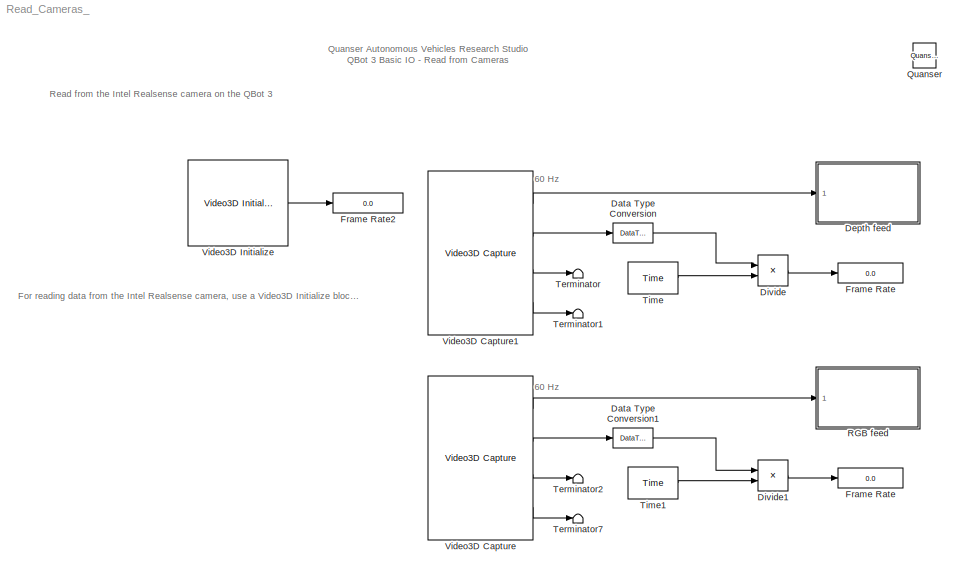
MODEL Read_Cameras_
KIND model
BLOCK [Display]  Frame Rate 
  Decimation = 20
  Ports = [1]
  SID = 93
BLOCK [DataTypeConversion] Data Type Conversion
  RndMeth = Floor
  SID = 255
  SaturateOnIntegerOverflow = off
BLOCK [DataTypeConversion] Data Type Conversion1
  RndMeth = Floor
  SID = 256
  SaturateOnIntegerOverflow = off
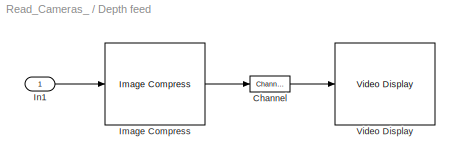
BLOCK [SubSystem] Depth feed
  CopyFcn = set_param(gcbh, 'UserData', gcb);\nset_param(gcbh, 'LinkStatus', 'none');
  LoadFcn = set_param(gcbh, 'UserData', gcb);
  NameChangeFcn = video_display_show([get_param(gcbh, 'UserData'), '/Video Display'], 'rename', [gcb, '/Video Display']);\nvideo_display_show([gcb, '/Video Display'], 'add', gcb);\nset_param(gcbh, 'UserData', gcb);\n
  OpenFcn = video_display_show([gcb, '/Video Display'], 'show', gcb);
  Ports = [1]
  PreDeleteFcn = video_display_show([gcb, '/Video Display'], 'delete');
  RequestExecContextInheritance = off
  SID = 244
  StartFcn = video_display_show([gcb, '/Video Display'], 'add', gcb);
  UndoDeleteFcn = set_param(gcbh, 'UserData', gcb);
BLOCK [Reference] Depth feed/Channel  REF=quarc_library/Signal Routing/Channel
  MultiThreadCoSim = auto
  Ports = [1, 1]
  SID = 244:14426
  SourceBlock = quarc_library/Signal Routing/Channel
  SourceProductName = QUARC Targets
  SourceType = Channel
  buffer_size = 1
  channel = 0
BLOCK [Reference] Depth feed/Image Compress  REF=quarc_library/Image Processing/Generic/Image Compress
  AttributesFormatString = (%<algorithm>)
  MultiThreadCoSim = auto
  Ports = [1, 1]
  SID = 244:14427
  SourceBlock = quarc_library/Image Processing/Generic/Image Compress
  SourceProductName = QUARC Targets
  SourceType = Image Compress
  algorithm = JPEG
  output_dim = -1
  quality = quality
  source = Internal dialog parameter
BLOCK [Inport] Depth feed/In1
  SID = 244:14425
BLOCK [Reference] Depth feed/Video Display  REF=quarc_library/Multimedia/Video Display
  MultiThreadCoSim = auto
  Ports = [1]
  SID = 244:14428
  SourceBlock = quarc_library/Multimedia/Video Display
  SourceProductName = QUARC Targets
  SourceType = Video Display
  Tag = Read_Cameras_/Depth feed/Video Display
  UserData = DataTag0
  UserDataPersistent = on
  sample_time = sample_time
  use_hardware = on
BLOCK [Product] Divide
  Inputs = */
  Ports = [2, 1]
  SID = 77
BLOCK [Product] Divide1
  Inputs = */
  Ports = [2, 1]
  SID = 92
BLOCK [Display] Frame Rate
  Decimation = 20
  Ports = [1]
  SID = 78
BLOCK [Display] Frame Rate2
  Decimation = 20
  Ports = [1]
  SID = 72
BLOCK [Reference] Quanser  REF=quarc_library/Logos/Quanser
  Ports = []
  RTWMemSecDataConstants = Inherit from model
  RTWMemSecDataInternal = Inherit from model
  RTWMemSecDataParameters = Inherit from model
  RTWMemSecFuncExecute = Inherit from model
  RTWMemSecFuncInitTerm = Inherit from model
  SID = 259
  SourceBlock = quarc_library/Logos/Quanser
  SourceProductName = QUARC Targets
  SourceType = Powered by Quanser
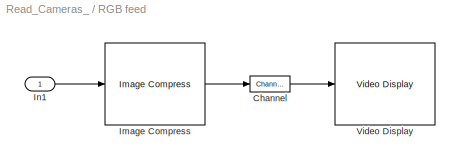
BLOCK [SubSystem] RGB feed
  CopyFcn = set_param(gcbh, 'UserData', gcb);\nset_param(gcbh, 'LinkStatus', 'none');
  LoadFcn = set_param(gcbh, 'UserData', gcb);
  NameChangeFcn = video_display_show([get_param(gcbh, 'UserData'), '/Video Display'], 'rename', [gcb, '/Video Display']);\nvideo_display_show([gcb, '/Video Display'], 'add', gcb);\nset_param(gcbh, 'UserData', gcb);\n
  OpenFcn = video_display_show([gcb, '/Video Display'], 'show', gcb);
  Ports = [1]
  PreDeleteFcn = video_display_show([gcb, '/Video Display'], 'delete');
  RequestExecContextInheritance = off
  SID = 245
  StartFcn = video_display_show([gcb, '/Video Display'], 'add', gcb);
  UndoDeleteFcn = set_param(gcbh, 'UserData', gcb);
BLOCK [Reference] RGB feed/Channel  REF=quarc_library/Signal Routing/Channel
  MultiThreadCoSim = auto
  Ports = [1, 1]
  SID = 245:14426
  SourceBlock = quarc_library/Signal Routing/Channel
  SourceProductName = QUARC Targets
  SourceType = Channel
  buffer_size = 1
  channel = 1
BLOCK [Reference] RGB feed/Image Compress  REF=quarc_library/Image Processing/Generic/Image Compress
  AttributesFormatString = (%<algorithm>)
  MultiThreadCoSim = auto
  Ports = [1, 1]
  SID = 245:14427
  SourceBlock = quarc_library/Image Processing/Generic/Image Compress
  SourceProductName = QUARC Targets
  SourceType = Image Compress
  algorithm = JPEG
  output_dim = -1
  quality = quality
  source = Internal dialog parameter
BLOCK [Inport] RGB feed/In1
  SID = 245:14425
BLOCK [Reference] RGB feed/Video Display  REF=quarc_library/Multimedia/Video Display
  MultiThreadCoSim = auto
  Ports = [1]
  SID = 245:14428
  SourceBlock = quarc_library/Multimedia/Video Display
  SourceProductName = QUARC Targets
  SourceType = Video Display
  Tag = Read_Cameras_/RGB feed/Video Display
  UserData = DataTag1
  UserDataPersistent = on
  sample_time = sample_time
  use_hardware = on
BLOCK [Terminator] Terminator
  SID = 87
BLOCK [Terminator] Terminator1
  SID = 252
BLOCK [Terminator] Terminator2
  SID = 254
BLOCK [Terminator] Terminator7
  SID = 98
BLOCK [Reference] Time  REF=quarc_library/Sources/Time/Time
  MultiThreadCoSim = auto
  Ports = [0, 1]
  SID = 257
  SourceBlock = quarc_library/Sources/Time/Time
  SourceProductName = QUARC Targets
  SourceType = Time
  sample_time = qc_get_step_size
  time_source = Wall clock
BLOCK [Reference] Time1  REF=quarc_library/Sources/Time/Time
  MultiThreadCoSim = auto
  Ports = [0, 1]
  SID = 258
  SourceBlock = quarc_library/Sources/Time/Time
  SourceProductName = QUARC Targets
  SourceType = Time
  sample_time = qc_get_step_size*2
  time_source = Wall clock
BLOCK [Reference] Video3D Capture  REF=quarc_library/Multimedia/Video3D Capture
  MultiThreadCoSim = auto
  Ports = [0, 4]
  SID = 253
  SourceBlock = quarc_library/Multimedia/Video3D Capture
  SourceProductName = QUARC Targets
  SourceType = Video3D Capture
  UserData = DataTag2
  UserDataPersistent = on
  backlightcompensation = 50.0
  backlightcompensation_override = off
  brightness = 50.0
  brightness_override = off
  camera_intrinsics = off
  contrast = 50.0
  contrast_override = off
  data_type = uint8
  depth_scale = off
  emitter = Enable laser emitter
  exposure = 30.0
  exposure_override = Automatic exposure
  gain = 50.0
  gain_override = off
  gamma = 50.0
  gamma_override = off
  height = 480
  hue = 50.0
  hue_override = off
  object_name = Video3D-1
  output_format = MATLAB RGB (HxWx3)
  preset = Do not set camera presets
  resolution = 640 x 480
  sample_time = qc_get_step_size * ceil(1/30 / qc_get_step_size)
  saturation = 50.0
  saturation_override = off
  sharpness = 50.0
  sharpness_override = off
  stream_index = 0
  stream_type = RGB
  whitebalance = 50.0
  whitebalance_override = Automatic white balance
  width = 640
BLOCK [Reference] Video3D Capture1  REF=quarc_library/Multimedia/Video3D Capture
  MultiThreadCoSim = auto
  Ports = [0, 4]
  SID = 251
  SourceBlock = quarc_library/Multimedia/Video3D Capture
  SourceProductName = QUARC Targets
  SourceType = Video3D Capture
  UserData = DataTag3
  UserDataPersistent = on
  backlightcompensation = 50.0
  backlightcompensation_override = off
  brightness = 50.0
  brightness_override = off
  camera_intrinsics = off
  contrast = 50.0
  contrast_override = off
  data_type = single
  depth_scale = off
  emitter = Enable laser emitter
  exposure = 30.0
  exposure_override = Automatic exposure
  gain = 50.0
  gain_override = off
  gamma = 50.0
  gamma_override = off
  height = 480
  hue = 50.0
  hue_override = off
  object_name = Video3D-1
  output_format = Distance in meters (HxW)
  preset = Do not set camera presets
  resolution = 640 x 480
  sample_time = qc_get_step_size * ceil(1/60 / qc_get_step_size)
  saturation = 50.0
  saturation_override = off
  sharpness = 50.0
  sharpness_override = off
  stream_index = 0
  stream_type = Depth
  whitebalance = 50.0
  whitebalance_override = Automatic white balance
  width = 640
BLOCK [Reference] Video3D Initialize  REF=quarc_library/Multimedia/Video3D Initialize
  MultiThreadCoSim = auto
  Ports = [0, 1]
  SID = 250
  SourceBlock = quarc_library/Multimedia/Video3D Initialize
  SourceProductName = QUARC Targets
  SourceType = Video3D Initialize
  active = on
  file = sample.bag
  identifier = 0
  object_name = Video3D-1
  sample_time = qc_get_step_size * ceil(1/60 / qc_get_step_size)
  source = Device
ANNOTATION (root): 60 Hz
ANNOTATION (root): \n \n For reading data from the Intel Realsense camera, use a Video3D Initialize block with the Device Identifier set to 0. Add the Video3D Capture blocks as required, for either depth and/or RGB. \n \n Use a Video Compressed Display block to view the feed.
ANNOTATION (root): \n \n Quanser Autonomous Vehicles Research Studio QBot 3 Basic IO - Read from Cameras
ANNOTATION (root): Read from the Intel Realsense camera on the QBot 3
LINE Data Type Conversion1:1 -> Divide1:1
LINE Data Type Conversion:1 -> Divide:1
LINE Depth feed/Channel:1 -> Depth feed/Video Display:1
LINE Depth feed/Image Compress:1 -> Depth feed/Channel:1
LINE Depth feed/In1:1 -> Depth feed/Image Compress:1
LINE Divide1:1 ->  Frame Rate :1
LINE Divide:1 -> Frame Rate:1
LINE RGB feed/Channel:1 -> RGB feed/Video Display:1
LINE RGB feed/Image Compress:1 -> RGB feed/Channel:1
LINE RGB feed/In1:1 -> RGB feed/Image Compress:1
LINE Time1:1 -> Divide1:2
LINE Time:1 -> Divide:2
LINE Video3D Capture1:1 -> Depth feed:1
LINE Video3D Capture1:2 -> Data Type Conversion:1
LINE Video3D Capture1:3 -> Terminator:1
LINE Video3D Capture1:4 -> Terminator1:1
LINE Video3D Capture:1 -> RGB feed:1
LINE Video3D Capture:2 -> Data Type Conversion1:1
LINE Video3D Capture:3 -> Terminator2:1
LINE Video3D Capture:4 -> Terminator7:1
LINE Video3D Initialize:1 -> Frame Rate2:1
